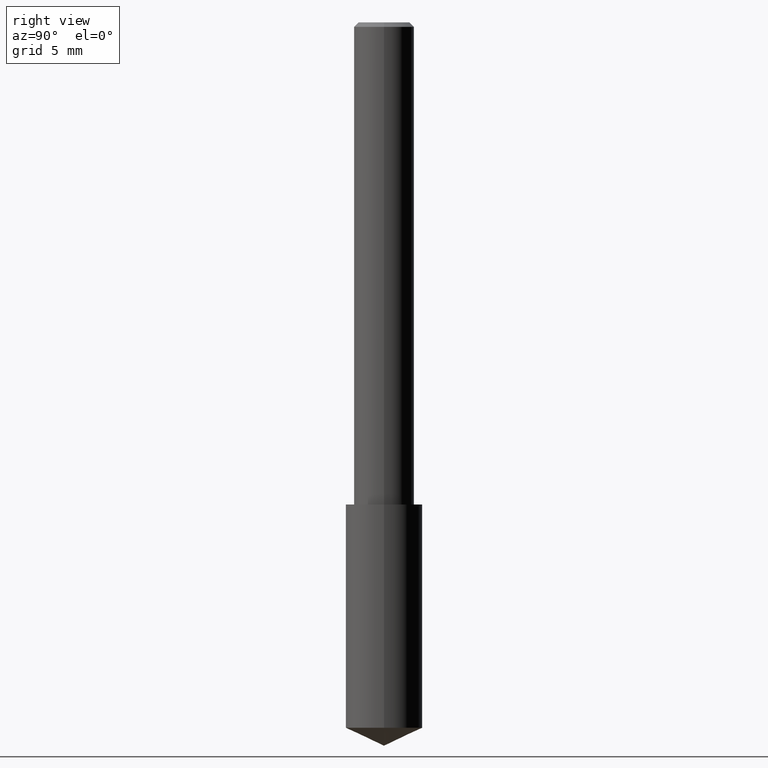
[diagram: clean part render]
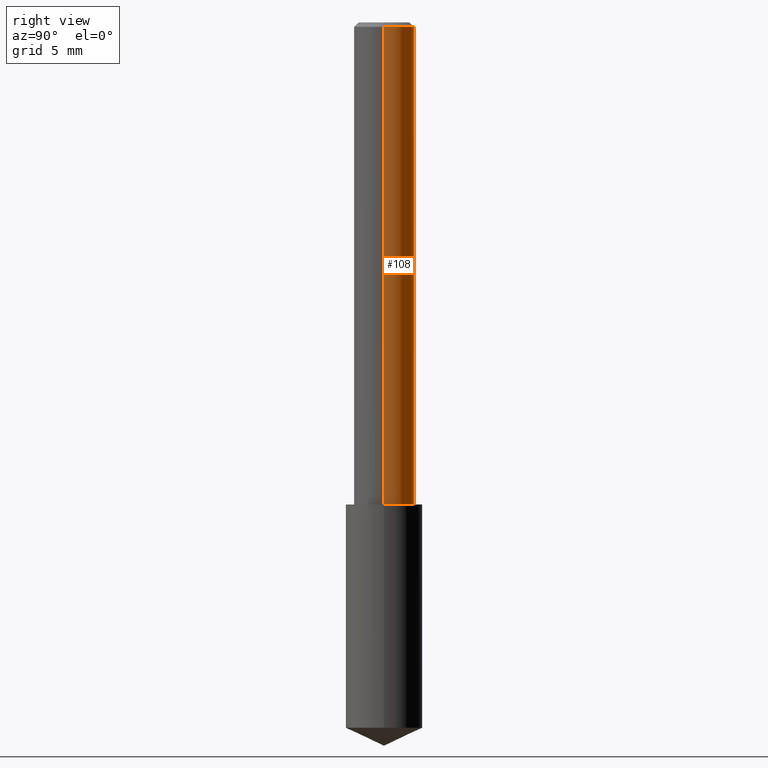
[diagram: same view with one face highlighted and labeled with its STEP entity id]
A machine part, right view. The second image highlights one B-rep face of the part: STEP entity #108.
In plain terms, the highlighted cylindrical surface (edge-blend (fillet) strip) has radius 1.5875 mm, axis along (-0, 0, 1).
Its self-contained STEP definition (entity closure, byte-faithful):
#19 = DIRECTION ( 'NONE',  ( 1.000000000000000000, -6.982962677686266711E-15, 0.000000000000000000 ) ) ;
#21 = CARTESIAN_POINT ( 'NONE',  ( 2.292627005798581499E-31, -3.273263755165471417E-17, -0.009375000000000063838 ) ) ;
#29 = ORIENTED_EDGE ( 'NONE', *, *, #303, .F. ) ;
#40 = VERTEX_POINT ( 'NONE', #216 ) ;
#55 = VERTEX_POINT ( 'NONE', #324 ) ;
#57 = EDGE_CURVE ( 'NONE', #40, #55, #219, .T. ) ;
#70 = DIRECTION ( 'NONE',  ( -2.445468806185136597E-29, 3.491481338843145583E-15, 1.000000000000000000 ) ) ;
#100 = DIRECTION ( 'NONE',  ( -2.445468806185136597E-29, 3.491481338843145583E-15, 1.000000000000000000 ) ) ;
#101 = AXIS2_PLACEMENT_3D ( 'NONE', #21, #70, #19 ) ;
#103 = FACE_OUTER_BOUND ( 'NONE', #328, .T. ) ;
#105 = VECTOR ( 'NONE', #203, 39.37007874015748143 ) ;
#108 = ADVANCED_FACE ( 'NONE', ( #103 ), #218, .T. ) ;
#113 = VECTOR ( 'NONE', #315, 39.37007874015748143 ) ;
#119 = DIRECTION ( 'NONE',  ( 1.000000000000000000, -6.982962677686264344E-15, 0.000000000000000000 ) ) ;
#135 = EDGE_CURVE ( 'NONE', #40, #283, #278, .T. ) ;
#146 = CARTESIAN_POINT ( 'NONE',  ( -0.06250000000000012490, -1.318017778347335489E-15, -1.000000000000000222 ) ) ;
#152 = CARTESIAN_POINT ( 'NONE',  ( 2.445468806185137438E-29, -3.491481338843146371E-15, -1.000000000000000222 ) ) ;
#162 = AXIS2_PLACEMENT_3D ( 'NONE', #152, #330, #119 ) ;
#175 = CIRCLE ( 'NONE', #101, 0.06250000000000000000 ) ;
#203 = DIRECTION ( 'NONE',  ( -2.445468806185136877E-29, 3.491481338843145188E-15, 1.000000000000000000 ) ) ;
#215 = EDGE_CURVE ( 'NONE', #283, #251, #323, .T. ) ;
#216 = CARTESIAN_POINT ( 'NONE',  ( 0.06250000000000012490, -3.927916506198539224E-15, -1.000000000000000222 ) ) ;
#218 = CYLINDRICAL_SURFACE ( 'NONE', #273, 0.06250000000000006939 ) ;
#219 = LINE ( 'NONE', #335, #105 ) ;
#251 = VERTEX_POINT ( 'NONE', #309 ) ;
#252 = DIRECTION ( 'NONE',  ( 1.000000000000000000, -6.982962677686266711E-15, 4.876176775795935793E-29 ) ) ;
#255 = ORIENTED_EDGE ( 'NONE', *, *, #57, .F. ) ;
#273 = AXIS2_PLACEMENT_3D ( 'NONE', #326, #100, #252 ) ;
#278 = CIRCLE ( 'NONE', #162, 0.06250000000000012490 ) ;
#283 = VERTEX_POINT ( 'NONE', #146 ) ;
#303 = EDGE_CURVE ( 'NONE', #55, #251, #175, .T. ) ;
#307 = ORIENTED_EDGE ( 'NONE', *, *, #215, .T. ) ;
#309 = CARTESIAN_POINT ( 'NONE',  ( -0.06250000000000000000, -1.318017778347336672E-15, -0.009375000000000063838 ) ) ;
#315 = DIRECTION ( 'NONE',  ( -2.445468806185136877E-29, 3.491481338843145188E-15, 1.000000000000000000 ) ) ;
#322 = CARTESIAN_POINT ( 'NONE',  ( -0.06250000000000006939, 4.440892098500631092E-16, -3.074334431409319267E-30 ) ) ;
#323 = LINE ( 'NONE', #322, #113 ) ;
#324 = CARTESIAN_POINT ( 'NONE',  ( 0.06250000000000000000, -4.691678049070464390E-16, -0.009375000000000063838 ) ) ;
#325 = ORIENTED_EDGE ( 'NONE', *, *, #135, .T. ) ;
#326 = CARTESIAN_POINT ( 'NONE',  ( 0.000000000000000000, 0.000000000000000000, 0.000000000000000000 ) ) ;
#328 = EDGE_LOOP ( 'NONE', ( #325, #307, #29, #255 ) ) ;
#330 = DIRECTION ( 'NONE',  ( -2.445468806185136597E-29, 3.491481338843145583E-15, 1.000000000000000000 ) ) ;
#335 = CARTESIAN_POINT ( 'NONE',  ( 0.06250000000000006939, -4.364351673553921624E-16, 3.047610484872463374E-30 ) ) ;